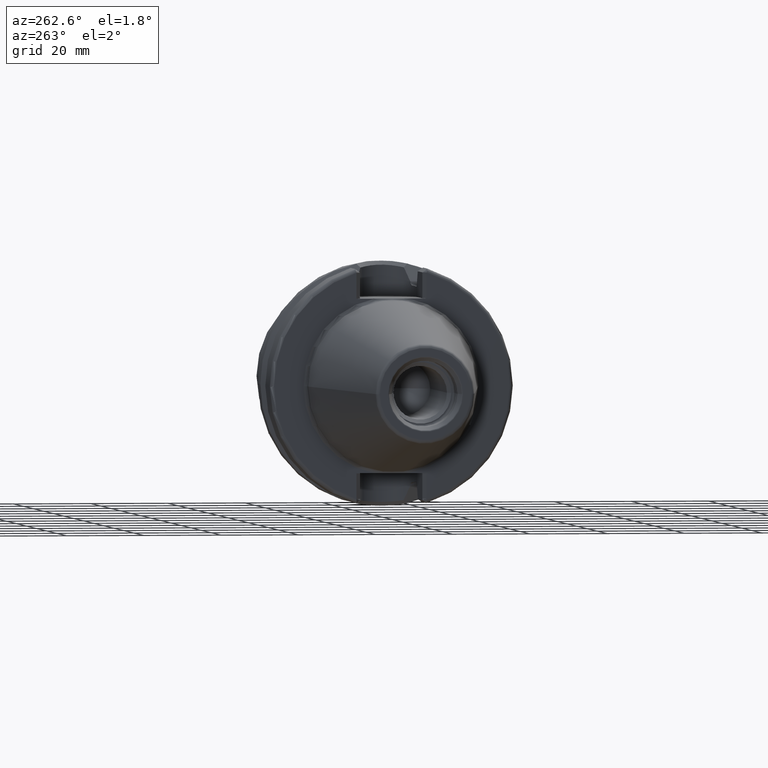
[diagram: clean part render]
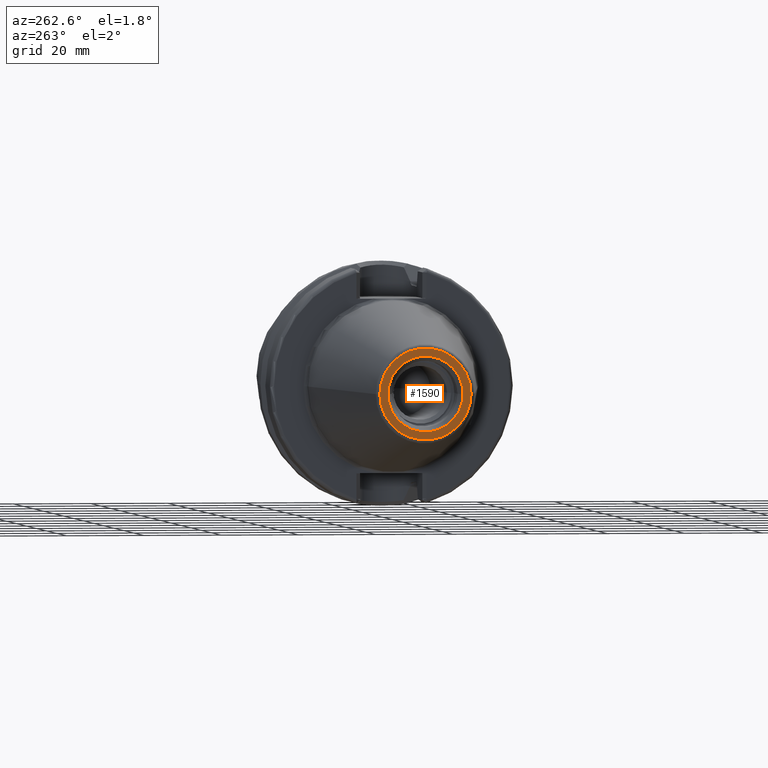
[diagram: same view with one face highlighted and labeled with its STEP entity id]
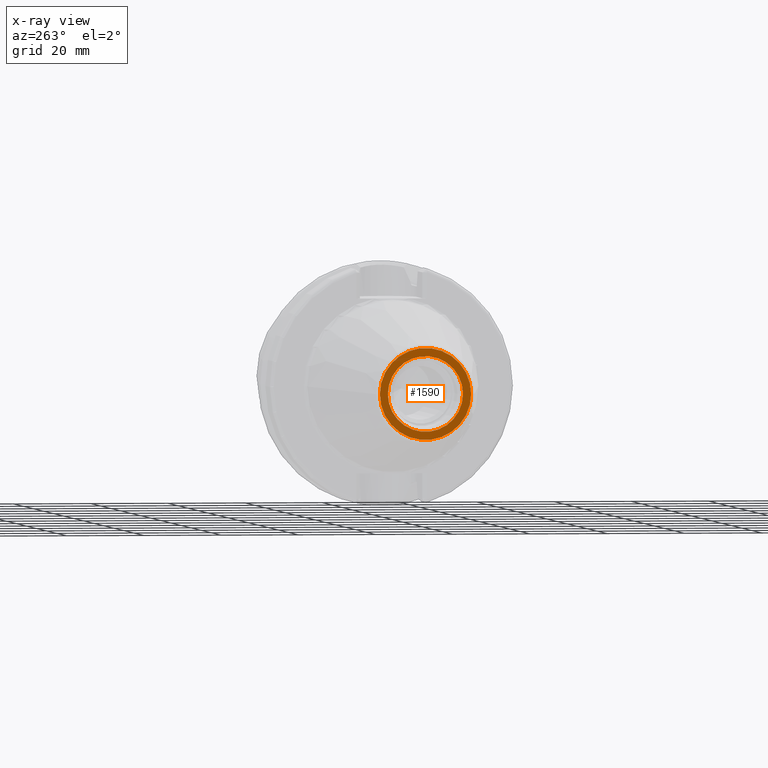
[diagram: x-ray of the same camera — body ghosted, the highlighted face saturated]
A machine part, auxiliary view. The second image highlights one B-rep face of the part: STEP entity #1590.
The next image is the same camera in x-ray: the body ghosted, the highlighted face saturated — about 0% of this face is hidden behind the body in this view.
In plain terms, the highlighted planar face has unit normal (1, 0, 0).
Its self-contained STEP definition (entity closure, byte-faithful):
#2=CARTESIAN_POINT('',(-6.54E1,0.E0,0.E0));
#3=DIRECTION('',(-1.E0,0.E0,0.E0));
#4=DIRECTION('',(0.E0,1.E0,0.E0));
#5=AXIS2_PLACEMENT_3D('',#2,#3,#4);
#7=CARTESIAN_POINT('',(-6.54E1,0.E0,0.E0));
#8=DIRECTION('',(1.E0,0.E0,0.E0));
#9=DIRECTION('',(0.E0,1.E0,0.E0));
#10=AXIS2_PLACEMENT_3D('',#7,#8,#9);
#12=CARTESIAN_POINT('',(-6.54E1,0.E0,0.E0));
#13=DIRECTION('',(1.E0,0.E0,0.E0));
#14=DIRECTION('',(0.E0,1.E0,0.E0));
#15=AXIS2_PLACEMENT_3D('',#12,#13,#14);
#17=CARTESIAN_POINT('',(-6.54E1,0.E0,0.E0));
#18=DIRECTION('',(1.E0,0.E0,0.E0));
#19=DIRECTION('',(0.E0,-1.E0,0.E0));
#20=AXIS2_PLACEMENT_3D('',#17,#18,#19);
#1315=CARTESIAN_POINT('',(-6.54E1,1.182197113897E1,0.E0));
#1317=VERTEX_POINT('',#1315);
#1319=CARTESIAN_POINT('',(-6.54E1,-1.182197113897E1,0.E0));
#1321=VERTEX_POINT('',#1319);
#1444=CARTESIAN_POINT('',(-6.54E1,9.730940107676E0,0.E0));
#1445=CARTESIAN_POINT('',(-6.54E1,-9.730940107676E0,0.E0));
#1446=VERTEX_POINT('',#1444);
#1447=VERTEX_POINT('',#1445);
#1573=CARTESIAN_POINT('',(-6.54E1,0.E0,0.E0));
#1574=DIRECTION('',(1.E0,0.E0,0.E0));
#1575=DIRECTION('',(0.E0,-1.E0,0.E0));
#1576=AXIS2_PLACEMENT_3D('',#1573,#1574,#1575);
#1577=PLANE('',#1576);
#1579=ORIENTED_EDGE('',*,*,#1578,.F.);
#1581=ORIENTED_EDGE('',*,*,#1580,.T.);
#1582=EDGE_LOOP('',(#1579,#1581));
#1583=FACE_OUTER_BOUND('',#1582,.F.);
#1585=ORIENTED_EDGE('',*,*,#1584,.F.);
#1587=ORIENTED_EDGE('',*,*,#1586,.F.);
#1588=EDGE_LOOP('',(#1585,#1587));
#1589=FACE_BOUND('',#1588,.F.);
#1590=ADVANCED_FACE('',(#1583,#1589),#1577,.F.);
#6=CIRCLE('',#5,1.182197113897E1);
#11=CIRCLE('',#10,1.182197113897E1);
#16=CIRCLE('',#15,9.730940107676E0);
#21=CIRCLE('',#20,9.730940107676E0);
#1578=EDGE_CURVE('',#1317,#1321,#6,.T.);
#1580=EDGE_CURVE('',#1317,#1321,#11,.T.);
#1584=EDGE_CURVE('',#1446,#1447,#16,.T.);
#1586=EDGE_CURVE('',#1447,#1446,#21,.T.);